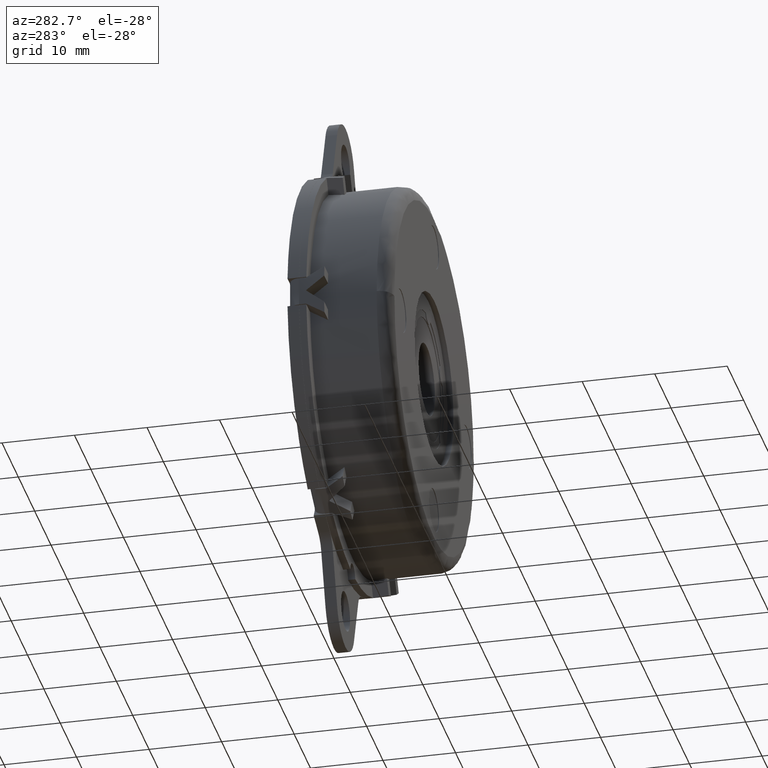
[diagram: clean part render]
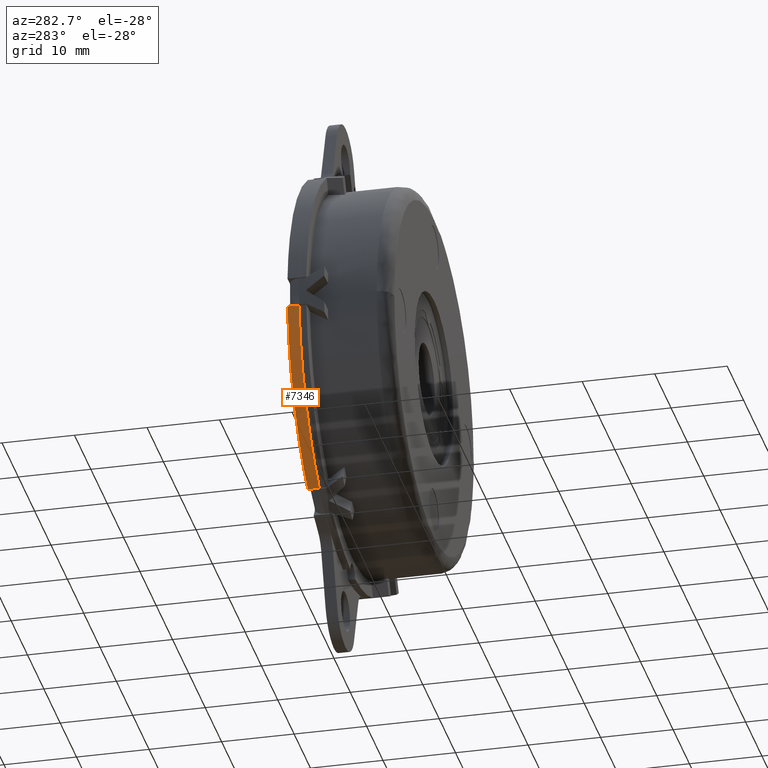
[diagram: same view with one face highlighted and labeled with its STEP entity id]
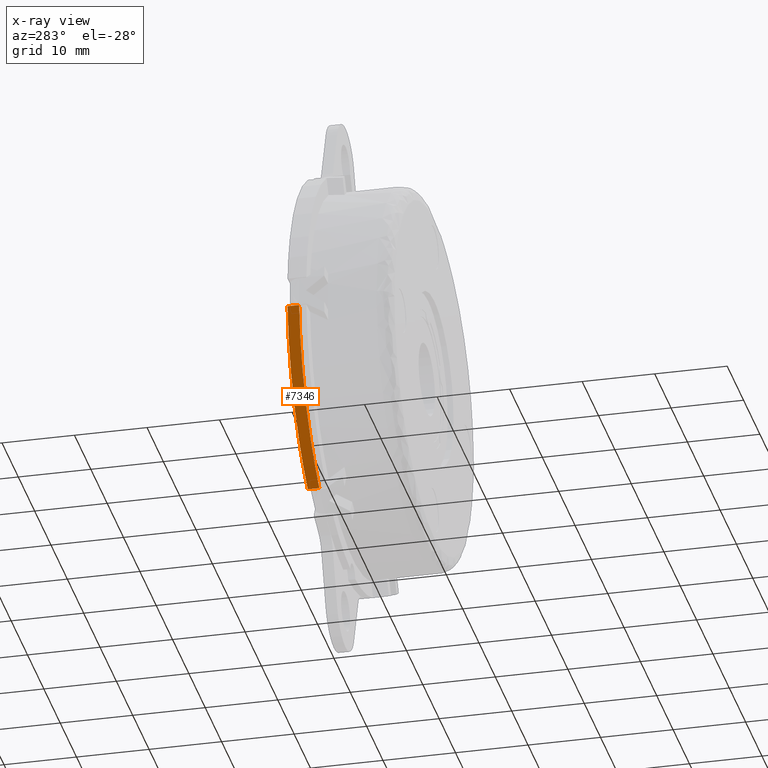
[diagram: x-ray of the same camera — body ghosted, the highlighted face saturated]
A machine part, auxiliary view. The second image highlights one B-rep face of the part: STEP entity #7346.
The next image is the same camera in x-ray: the body ghosted, the highlighted face saturated — about 0% of this face is hidden behind the body in this view.
In plain terms, the highlighted face is a freeform B-spline surface patch.
Its self-contained STEP definition (entity closure, byte-faithful):
#6329=CARTESIAN_POINT('',(-16.029916486739548,0.0,-23.564629796119348));
#6330=VERTEX_POINT('',#6329);
#6336=CARTESIAN_POINT('',(-28.422526277584851,0.0,-2.099999999999800));
#6337=VERTEX_POINT('',#6336);
#6338=CARTESIAN_POINT('',(-28.422526277584840,0.0,-2.099999999999787));
#6339=CARTESIAN_POINT('',(-27.408505005214575,0.0,-15.824307742845855));
#6340=CARTESIAN_POINT('',(-16.029916486739548,0.0,-23.564629796119348));
#6348=(BOUNDED_CURVE()B_SPLINE_CURVE(2,(#6338,#6339,#6340),.UNSPECIFIED.,.F.,.U.)CURVE()GEOMETRIC_REPRESENTATION_ITEM()QUASI_UNIFORM_CURVE()RATIONAL_B_SPLINE_CURVE((1.0,0.900513326179618,1.0))REPRESENTATION_ITEM(''));
#6349=EDGE_CURVE('',#6337,#6330,#6348,.T.);
#7263=CARTESIAN_POINT('',(-28.422526277584851,-1.600010000000095,-2.099999999999750));
#7264=VERTEX_POINT('',#7263);
#7265=CARTESIAN_POINT('',(-28.422526277584851,-1.600010000000095,-2.099999999999750));
#7266=CARTESIAN_POINT('',(-28.422526277584851,0.0,-2.099999999999800));
#7267=QUASI_UNIFORM_CURVE('',1,(#7265,#7266),.UNSPECIFIED.,.F.,.U.);
#7268=EDGE_CURVE('',#7264,#6337,#7267,.T.);
#7298=CARTESIAN_POINT('',(-16.029916486739548,-1.600010000000095,-23.564629796119348));
#7299=VERTEX_POINT('',#7298);
#7305=CARTESIAN_POINT('',(-16.029916486739548,-1.600010000000095,-23.564629796119348));
#7306=CARTESIAN_POINT('',(-16.029916486739548,0.0,-23.564629796119348));
#7307=QUASI_UNIFORM_CURVE('',1,(#7305,#7306),.UNSPECIFIED.,.F.,.U.);
#7308=EDGE_CURVE('',#7299,#6330,#7307,.T.);
#7314=CARTESIAN_POINT('',(-28.439769759422258,-1.640010250000098,-1.851889853919724));
#7315=CARTESIAN_POINT('',(-28.439769759422258,0.041000256250002,-1.851889853919724));
#7316=CARTESIAN_POINT('',(-27.485213950420530,-1.640010250000098,-16.511156641881151));
#7317=CARTESIAN_POINT('',(-27.485213950420530,0.041000256250002,-16.511156641881151));
#7318=CARTESIAN_POINT('',(-14.991484328262956,-1.640010250000098,-24.238510631543473));
#7319=CARTESIAN_POINT('',(-14.991484328262956,0.041000256250002,-24.238510631543473));
#7327=(BOUNDED_SURFACE()B_SPLINE_SURFACE(1,2,((#7314,#7316,#7318),(#7315,#7317,#7319)),.UNSPECIFIED.,.F.,.F.,.U.)B_SPLINE_SURFACE_WITH_KNOTS((2,2),(3,3),(0.0,1.0),(0.0,27.651980028960779),.UNSPECIFIED.)GEOMETRIC_REPRESENTATION_ITEM()RATIONAL_B_SPLINE_SURFACE(((1.0,0.887997178134883,0.998044530788465),(1.0,0.887997178134883,0.998044530788465)))REPRESENTATION_ITEM('')SURFACE());
#7328=CARTESIAN_POINT('',(-28.422526277584851,-1.600010000000095,-2.099999999999737));
#7329=CARTESIAN_POINT('',(-27.408505005214607,-1.600010000000095,-15.824307742845832));
#7330=CARTESIAN_POINT('',(-16.029916486739548,-1.600010000000095,-23.564629796119348));
#7338=(BOUNDED_CURVE()B_SPLINE_CURVE(2,(#7328,#7329,#7330),.UNSPECIFIED.,.F.,.U.)CURVE()GEOMETRIC_REPRESENTATION_ITEM()QUASI_UNIFORM_CURVE()RATIONAL_B_SPLINE_CURVE((1.0,0.900513326179618,1.0))REPRESENTATION_ITEM(''));
#7339=EDGE_CURVE('',#7264,#7299,#7338,.T.);
#7340=ORIENTED_EDGE('',*,*,#7339,.F.);
#7341=ORIENTED_EDGE('',*,*,#7268,.T.);
#7342=ORIENTED_EDGE('',*,*,#6349,.T.);
#7343=ORIENTED_EDGE('',*,*,#7308,.F.);
#7344=EDGE_LOOP('',(#7340,#7341,#7342,#7343));
#7345=FACE_OUTER_BOUND('',#7344,.T.);
#7346=ADVANCED_FACE('',(#7345),#7327,.T.);